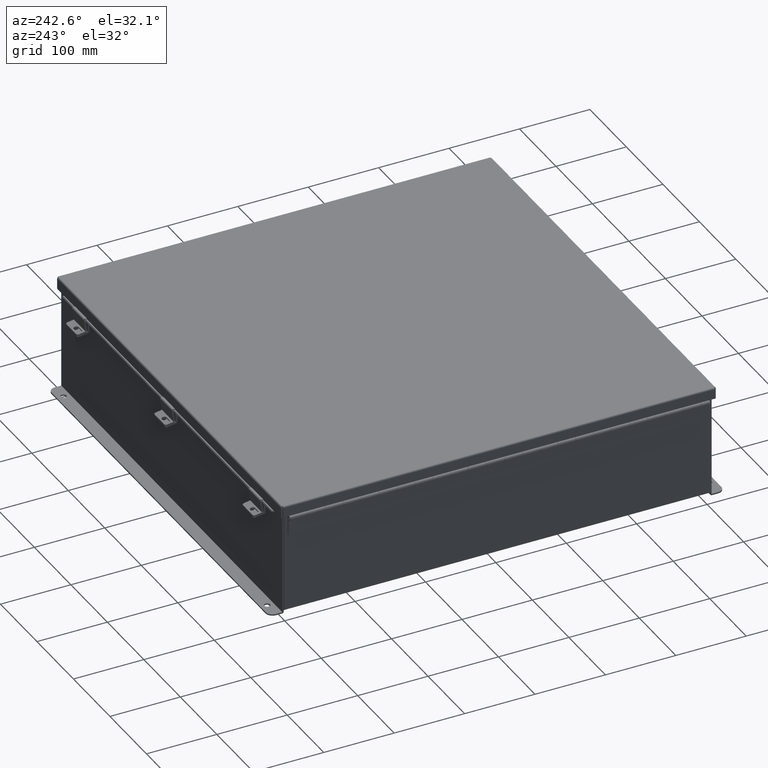
[diagram: clean part render]
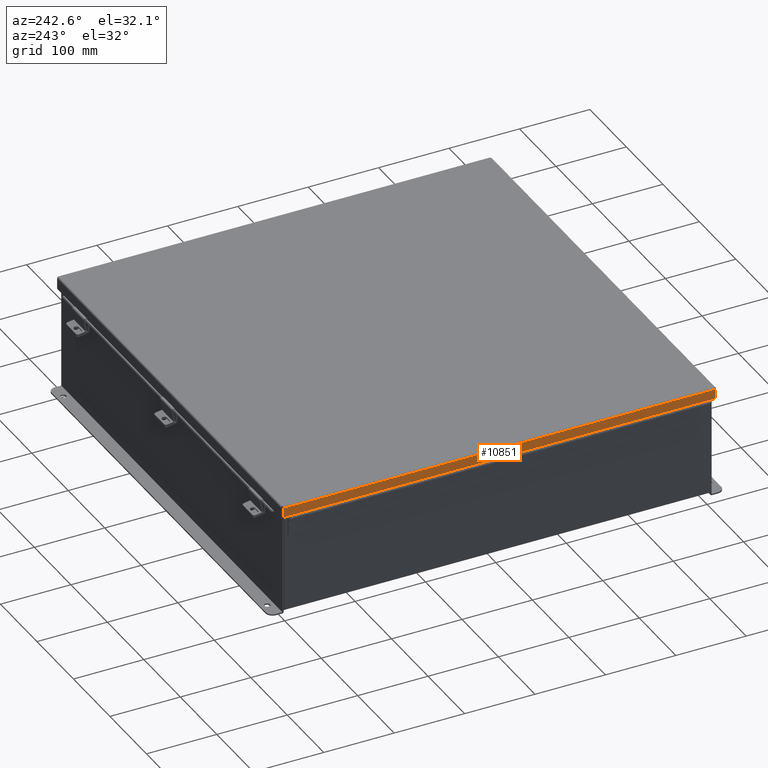
[diagram: same view with one face highlighted and labeled with its STEP entity id]
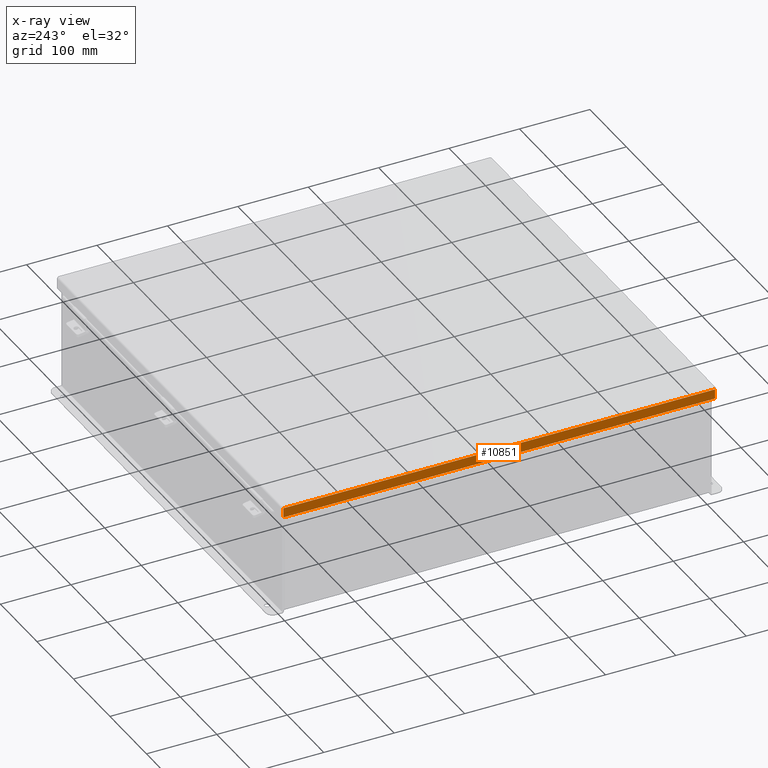
[diagram: x-ray of the same camera — body ghosted, the highlighted face saturated]
A machine part, auxiliary view. The second image highlights one B-rep face of the part: STEP entity #10851.
The next image is the same camera in x-ray: the body ghosted, the highlighted face saturated — about 0% of this face is hidden behind the body in this view.
In plain terms, the highlighted planar face has unit normal (1, -0, 0).
Its self-contained STEP definition (entity closure, byte-faithful):
#1870 = DIRECTION ( 'NONE',  ( -3.166671605124525800E-030, -1.000000000000000000, -1.853823127269377700E-029 ) ) ;
#3053 = LINE ( 'NONE', #3155, #12668 ) ;
#3055 = VERTEX_POINT ( 'NONE', #20098 ) ;
#3120 = FACE_OUTER_BOUND ( 'NONE', #12890, .T. ) ;
#3155 = CARTESIAN_POINT ( 'NONE',  ( 12.15625000000003900, 12.07447893218813200, -4.917326388595673900E-014 ) ) ;
#3459 = DIRECTION ( 'NONE',  ( -3.166671605124525800E-030, -1.000000000000000000, -1.853823127269377700E-029 ) ) ;
#3763 = CARTESIAN_POINT ( 'NONE',  ( 12.15625000000003900, -12.15625000000000000, 0.01299999999999901400 ) ) ;
#4345 = DIRECTION ( 'NONE',  ( -1.000000000000000000, -3.214874041279299500E-030, 3.971430846686186800E-015 ) ) ;
#4699 = VECTOR ( 'NONE', #9851, 39.37007874015748100 ) ;
#5061 = DIRECTION ( 'NONE',  ( 3.971430846686186800E-015, 1.846427556282924300E-029, 1.000000000000000000 ) ) ;
#6360 = EDGE_CURVE ( 'NONE', #16625, #22477, #21851, .T. ) ;
#7365 = AXIS2_PLACEMENT_3D ( 'NONE', #15894, #4345, #17801 ) ;
#8191 = CARTESIAN_POINT ( 'NONE',  ( 12.15625000000003900, -12.07447893218813200, 0.01299999999999901400 ) ) ;
#8736 = EDGE_CURVE ( 'NONE', #22477, #3055, #9836, .T. ) ;
#9836 = LINE ( 'NONE', #15601, #4699 ) ;
#9851 = DIRECTION ( 'NONE',  ( 3.971430846686186800E-015, 1.846427556282924300E-029, 1.000000000000000000 ) ) ;
#10737 = LINE ( 'NONE', #14994, #19774 ) ;
#10851 = ADVANCED_FACE ( 'NONE', ( #3120 ), #23565, .F. ) ;
#11418 = ORIENTED_EDGE ( 'NONE', *, *, #15589, .T. ) ;
#11847 = VERTEX_POINT ( 'NONE', #24107 ) ;
#11872 = ORIENTED_EDGE ( 'NONE', *, *, #6360, .F. ) ;
#12129 = ORIENTED_EDGE ( 'NONE', *, *, #8736, .F. ) ;
#12668 = VECTOR ( 'NONE', #5061, 39.37007874015748100 ) ;
#12890 = EDGE_LOOP ( 'NONE', ( #11872, #11418, #21754, #12129 ) ) ;
#14994 = CARTESIAN_POINT ( 'NONE',  ( 12.15625000000003900, 4.268512490100411300E-018, 0.5502999999999999000 ) ) ;
#15589 = EDGE_CURVE ( 'NONE', #16625, #11847, #3053, .T. ) ;
#15601 = CARTESIAN_POINT ( 'NONE',  ( 12.15625000000003900, -12.07447893218813200, -1.092739197465705300E-015 ) ) ;
#15894 = CARTESIAN_POINT ( 'NONE',  ( 12.15625000000003700, 0.0000000000000000000, -4.808052468849102900E-014 ) ) ;
#16625 = VERTEX_POINT ( 'NONE', #21908 ) ;
#17801 = DIRECTION ( 'NONE',  ( 3.971430846686186800E-015, 1.846427556282924000E-029, 1.000000000000000000 ) ) ;
#18256 = EDGE_CURVE ( 'NONE', #11847, #3055, #10737, .T. ) ;
#19774 = VECTOR ( 'NONE', #3459, 39.37007874015748100 ) ;
#20098 = CARTESIAN_POINT ( 'NONE',  ( 12.15625000000003700, -12.07447893218813200, 0.5502999999999999000 ) ) ;
#21249 = VECTOR ( 'NONE', #1870, 39.37007874015748100 ) ;
#21754 = ORIENTED_EDGE ( 'NONE', *, *, #18256, .T. ) ;
#21851 = LINE ( 'NONE', #3763, #21249 ) ;
#21908 = CARTESIAN_POINT ( 'NONE',  ( 12.15625000000003900, 12.07447893218813200, 0.01300000000000010700 ) ) ;
#22477 = VERTEX_POINT ( 'NONE', #8191 ) ;
#23565 = PLANE ( 'NONE',  #7365 ) ;
#24107 = CARTESIAN_POINT ( 'NONE',  ( 12.15625000000003700, 12.07447893218813200, 0.5502999999999999000 ) ) ;